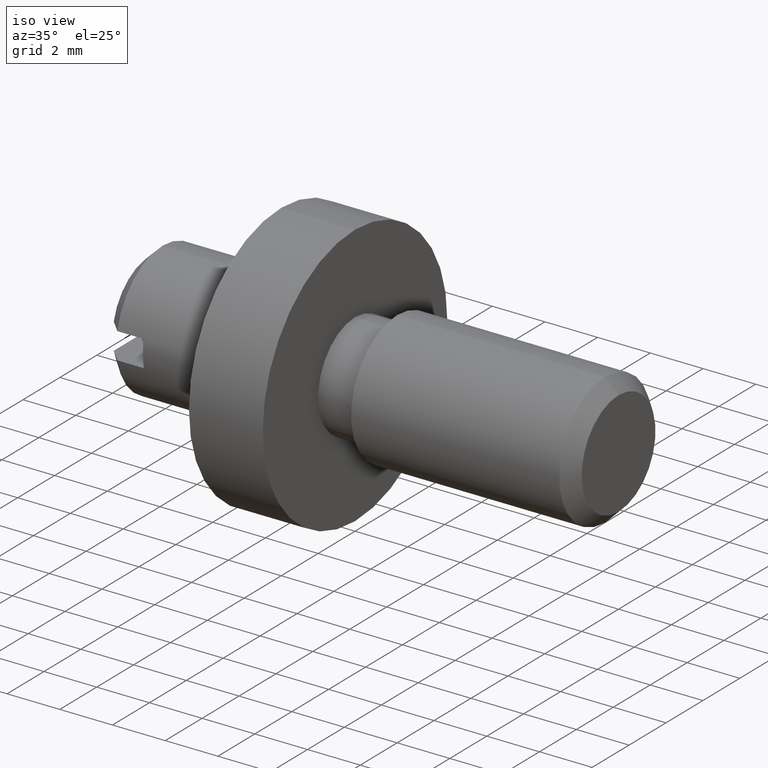
[diagram: clean part render]
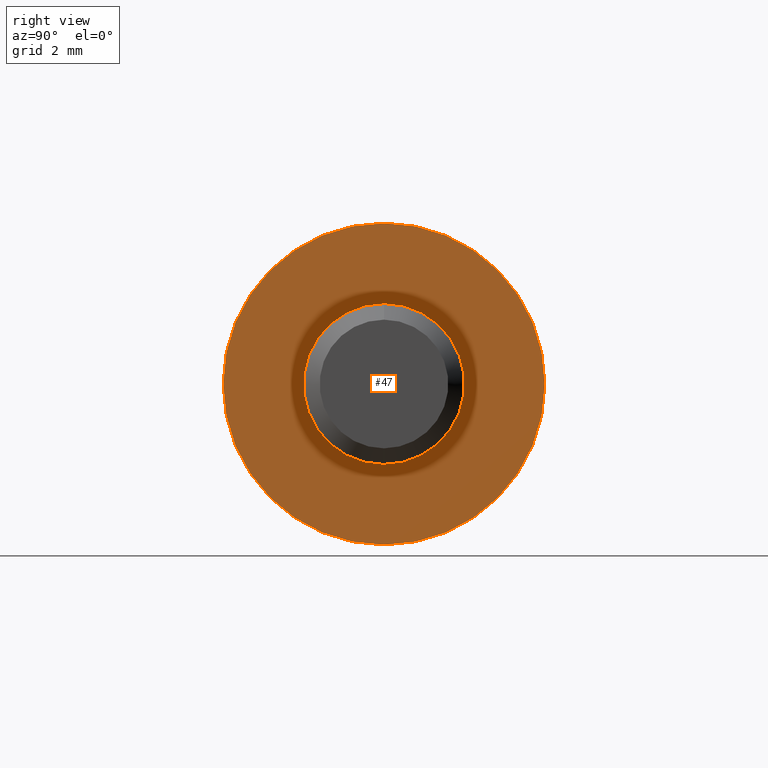
[diagram: tour spotlight — one face highlighted and labeled with its STEP entity id]
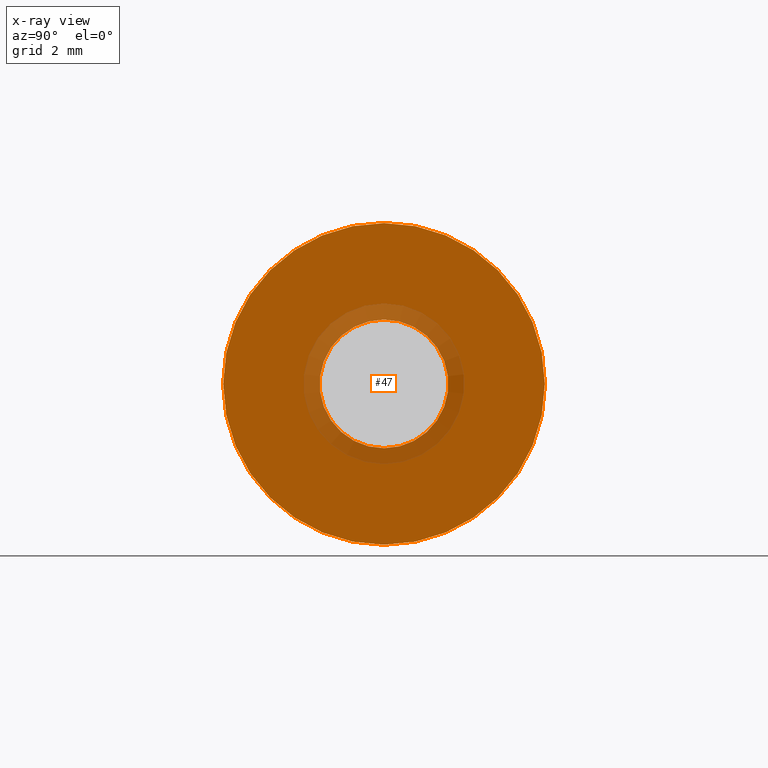
[diagram: x-ray of the same camera — body ghosted, this tour face saturated]
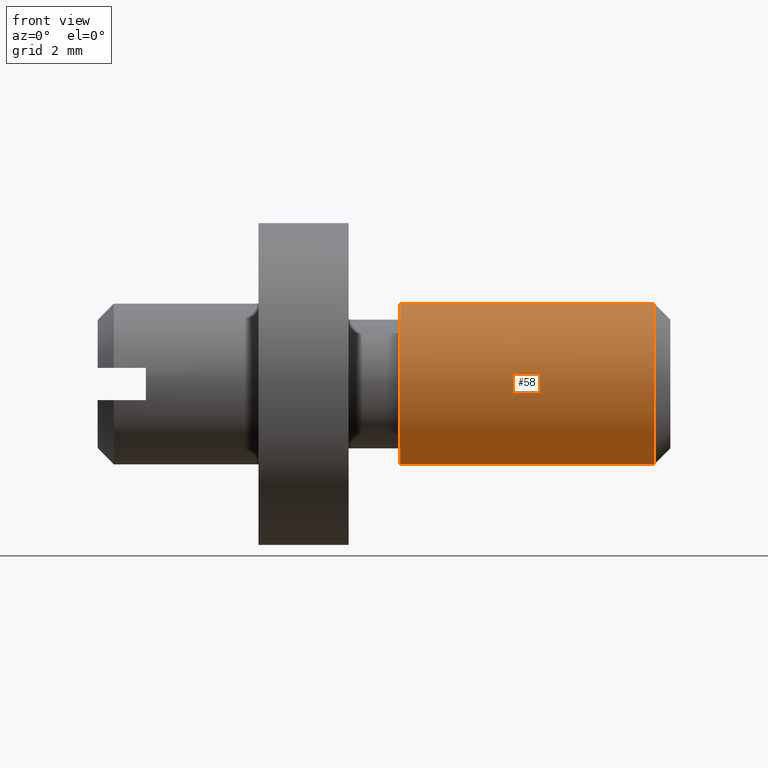
[diagram: tour spotlight — one face highlighted and labeled with its STEP entity id]
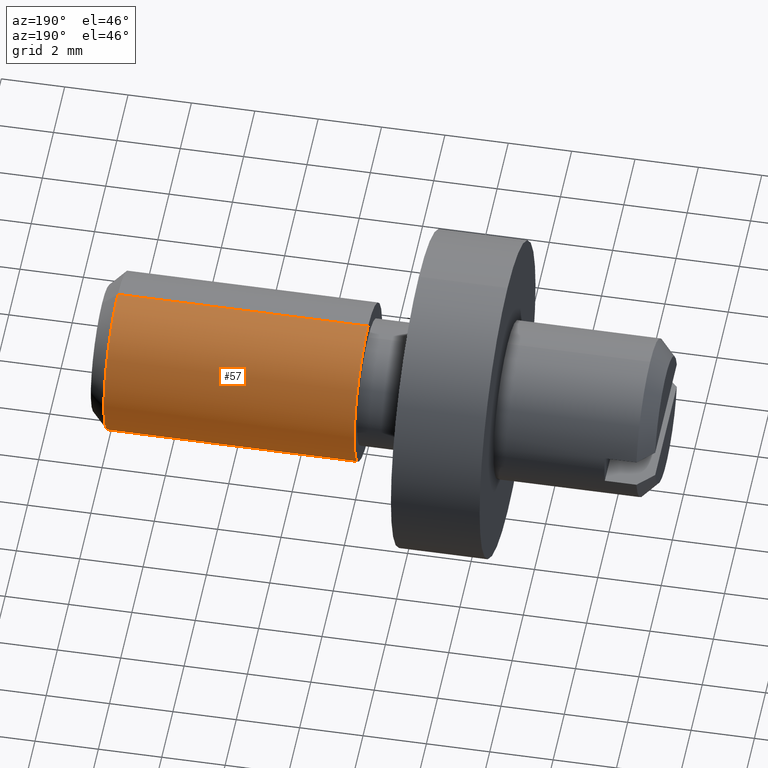
[diagram: tour spotlight — one face highlighted and labeled with its STEP entity id]
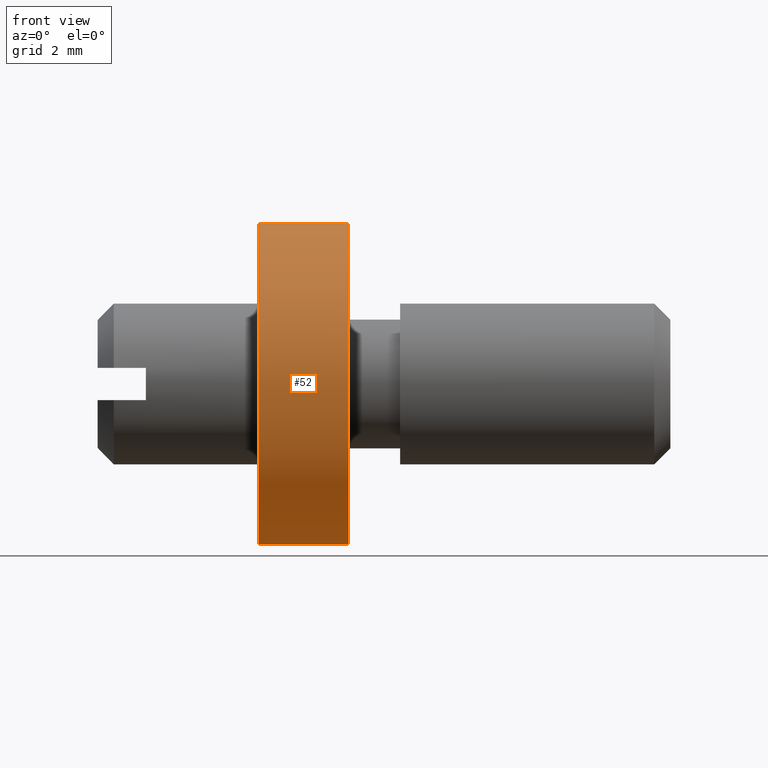
[diagram: tour spotlight — one face highlighted and labeled with its STEP entity id]
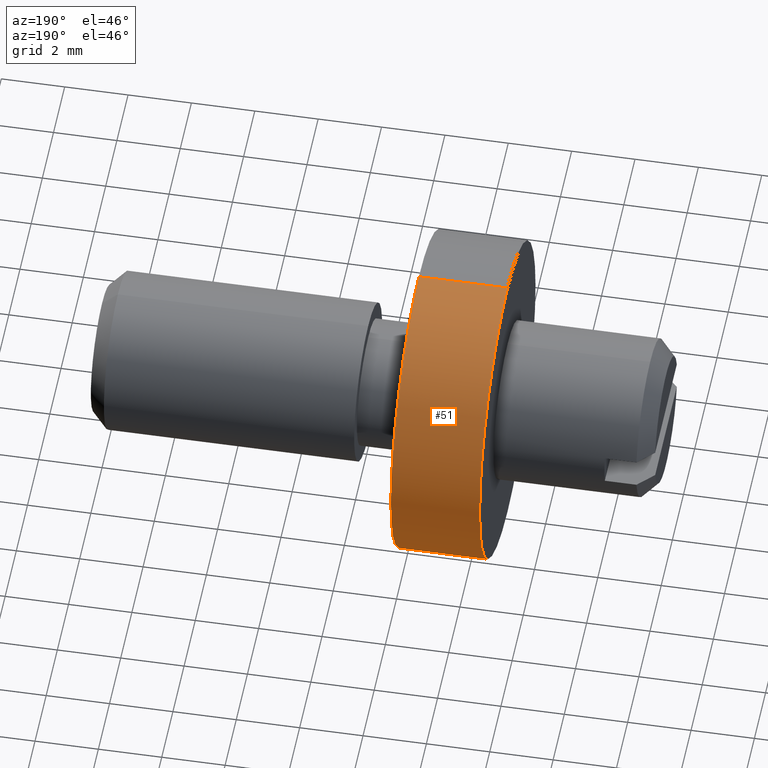
[diagram: tour spotlight — one face highlighted and labeled with its STEP entity id]
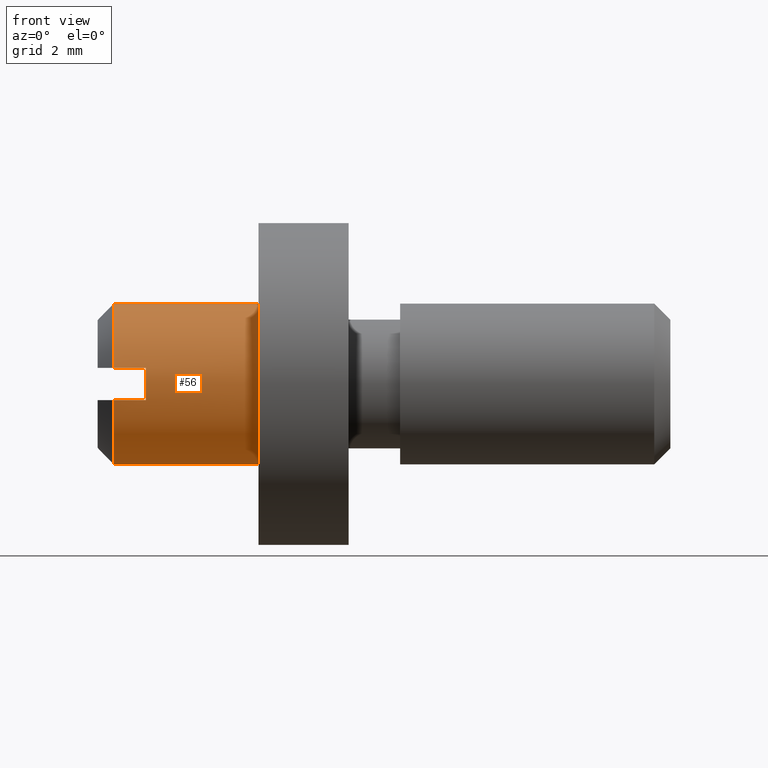
[diagram: tour spotlight — one face highlighted and labeled with its STEP entity id]
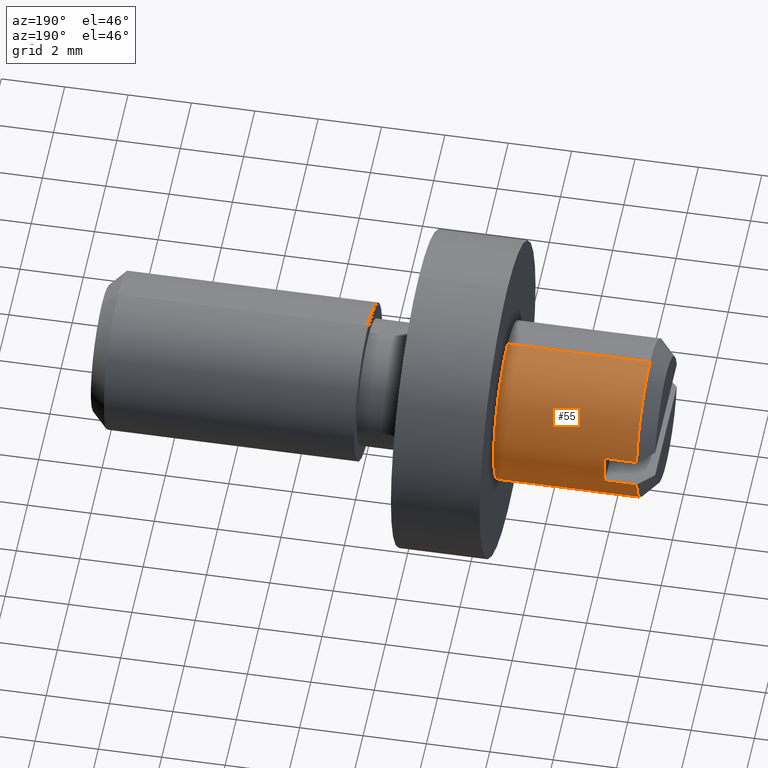
[diagram: tour spotlight — one face highlighted and labeled with its STEP entity id]
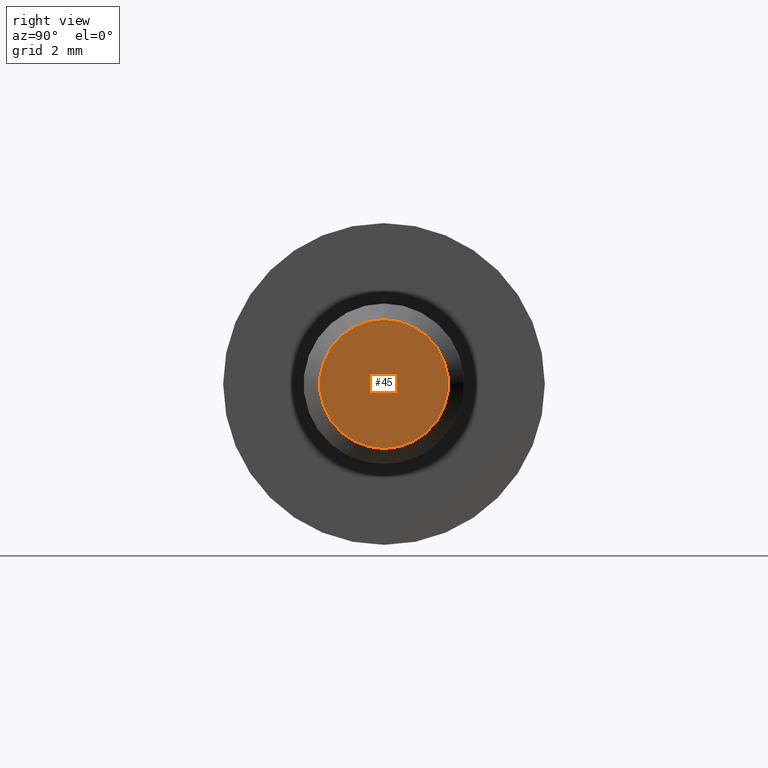
[diagram: tour spotlight — one face highlighted and labeled with its STEP entity id]
A machine part: a face-by-face anatomy tour. The part has 21 B-rep faces; the first image is the clean iso view, then the 8 largest visible faces are spotlighted one at a time (largest first), each with its STEP entity span.

Face 1 — right view, entity #47. An x-ray twin of the same camera follows (body ghosted, this face saturated) — the face is partly hidden behind the body. In plain terms, the highlighted planar face has unit normal (-1, 0, 0).
Definition (entity closure, byte-faithful):
#47=ADVANCED_FACE('',(#133,#134),#132,.F.);
#132=PLANE('',#319);
#133=FACE_OUTER_BOUND('',#320,.T.);
#134=FACE_BOUND('',#321,.T.);
#316=CARTESIAN_POINT('',(-1.00000000000E+01,-1.03923048454E+01,-1.15000000000E+01));
#317=DIRECTION('',(-1.00000000000E+00,0.00000000000E+00,0.00000000000E+00));
#318=DIRECTION('',(0.00000000000E+00,0.00000000000E+00,1.00000000000E+00));
#319=AXIS2_PLACEMENT_3D('',#316,#317,#318);
#320=EDGE_LOOP('',(#433,#434));
#321=EDGE_LOOP('',(#435,#436));
#433=ORIENTED_EDGE('',*,*,#520,.F.);
#434=ORIENTED_EDGE('',*,*,#521,.F.);
#435=ORIENTED_EDGE('',*,*,#522,.T.);
#436=ORIENTED_EDGE('',*,*,#523,.T.);
#520=EDGE_CURVE('',#695,#696,#697,.T.);
#521=EDGE_CURVE('',#696,#695,#703,.T.);
#522=EDGE_CURVE('',#709,#710,#711,.T.);
#523=EDGE_CURVE('',#710,#709,#717,.T.);
#695=VERTEX_POINT('',#949);
#696=VERTEX_POINT('',#950);
#697=CIRCLE('',#954,5.00000000000E+00);
#703=CIRCLE('',#958,5.00000000000E+00);
#709=VERTEX_POINT('',#959);
#710=VERTEX_POINT('',#960);
#711=CIRCLE('',#964,2.00000000000E+00);
#717=CIRCLE('',#968,2.00000000000E+00);
#949=CARTESIAN_POINT('',(-1.00000000000E+01,0.00000000000E+00,-5.00000000000E+00));
#950=CARTESIAN_POINT('',(-1.00000000000E+01,-9.08362650144E-16,5.00000000000E+00));
#951=CARTESIAN_POINT('',(-1.00000000000E+01,0.00000000000E+00,0.00000000000E+00));
#952=DIRECTION('',(-1.00000000000E+00,0.00000000000E+00,0.00000000000E+00));
#953=DIRECTION('',(-0.00000000000E+00,-5.92118946466E-17,1.00000000000E+00));
#954=AXIS2_PLACEMENT_3D('',#951,#952,#953);
#955=CARTESIAN_POINT('',(-1.00000000000E+01,0.00000000000E+00,0.00000000000E+00));
#956=DIRECTION('',(-1.00000000000E+00,0.00000000000E+00,0.00000000000E+00));
#957=DIRECTION('',(-0.00000000000E+00,-5.92118946466E-17,1.00000000000E+00));
#958=AXIS2_PLACEMENT_3D('',#955,#956,#957);
#959=CARTESIAN_POINT('',(-1.00000000000E+01,2.44921270764E-16,-2.00000000000E+00));
#960=CARTESIAN_POINT('',(-1.00000000000E+01,7.40148683083E-17,2.00000000000E+00));
#961=CARTESIAN_POINT('',(-1.00000000000E+01,0.00000000000E+00,0.00000000000E+00));
#962=DIRECTION('',(-1.00000000000E+00,0.00000000000E+00,0.00000000000E+00));
#963=DIRECTION('',(-0.00000000000E+00,-0.00000000000E+00,-1.00000000000E+00));
#964=AXIS2_PLACEMENT_3D('',#961,#962,#963);
#965=CARTESIAN_POINT('',(-1.00000000000E+01,0.00000000000E+00,0.00000000000E+00));
#966=DIRECTION('',(-1.00000000000E+00,0.00000000000E+00,0.00000000000E+00));
#967=DIRECTION('',(-0.00000000000E+00,-0.00000000000E+00,-1.00000000000E+00));
#968=AXIS2_PLACEMENT_3D('',#965,#966,#967);

Face 2 — front view, entity #58. In plain terms, the highlighted cylindrical surface (partial cylindrical patch) has radius 2.5 mm, axis along (-1, -0, 0).
Definition (entity closure, byte-faithful):
#58=ADVANCED_FACE('',(#245),#244,.T.);
#244=CYLINDRICAL_SURFACE('',#382,2.50000000000E+00);
#245=FACE_OUTER_BOUND('',#383,.T.);
#379=CARTESIAN_POINT('',(-4.44999980927E+00,0.00000000000E+00,0.00000000000E+00));
#380=DIRECTION('',(-1.00000000000E+00,-0.00000000000E+00,0.00000000000E+00));
#381=DIRECTION('',(0.00000000000E+00,-0.00000000000E+00,1.00000000000E+00));
#382=AXIS2_PLACEMENT_3D('',#379,#380,#381);
#383=EDGE_LOOP('',(#486,#487,#488,#489));
#486=ORIENTED_EDGE('',*,*,#541,.T.);
#487=ORIENTED_EDGE('',*,*,#538,.T.);
#488=ORIENTED_EDGE('',*,*,#516,.F.);
#489=ORIENTED_EDGE('',*,*,#540,.F.);
#516=EDGE_CURVE('',#667,#668,#669,.T.);
#538=EDGE_CURVE('',#812,#668,#813,.T.);
#540=EDGE_CURVE('',#819,#667,#826,.T.);
#541=EDGE_CURVE('',#819,#812,#832,.T.);
#667=VERTEX_POINT('',#929);
#668=VERTEX_POINT('',#930);
#669=CIRCLE('',#934,2.50000000000E+00);
#812=VERTEX_POINT('',#1018);
#813=(BOUNDED_CURVE() B_SPLINE_CURVE(1,(#1019,#1020),.UNSPECIFIED.,.F.,.F.) B_SPLINE_CURVE_WITH_KNOTS((2,2),(8.33333366442E-02,9.16666667899E-01),.UNSPECIFIED.) CURVE() GEOMETRIC_REPRESENTATION_ITEM() RATIONAL_B_SPLINE_CURVE((1.00000000000E+00,1.00000000000E+00)) REPRESENTATION_ITEM('') );
#819=VERTEX_POINT('',#1021);
#826=(BOUNDED_CURVE() B_SPLINE_CURVE(1,(#1026,#1027),.UNSPECIFIED.,.F.,.F.) B_SPLINE_CURVE_WITH_KNOTS((2,2),(8.33333333333E-02,9.16666666667E-01),.UNSPECIFIED.) CURVE() GEOMETRIC_REPRESENTATION_ITEM() RATIONAL_B_SPLINE_CURVE((7.50000000000E-01,7.50000000000E-01)) REPRESENTATION_ITEM('') );
#832=CIRCLE('',#1031,2.50000000000E+00);
#929=CARTESIAN_POINT('',(-8.40000000000E+00,3.06151588456E-16,-2.50000000000E+00));
#930=CARTESIAN_POINT('',(-8.40000000000E+00,1.48029736617E-16,2.50000000000E+00));
#931=CARTESIAN_POINT('',(-8.40000000000E+00,0.00000000000E+00,0.00000000000E+00));
#932=DIRECTION('',(-1.00000000000E+00,0.00000000000E+00,0.00000000000E+00));
#933=DIRECTION('',(-0.00000000000E+00,-0.00000000000E+00,-1.00000000000E+00));
#934=AXIS2_PLACEMENT_3D('',#931,#932,#933);
#1018=CARTESIAN_POINT('',(-5.00000000000E-01,1.48029736617E-16,2.50000000000E+00));
#1019=CARTESIAN_POINT('',(-5.00000031387E-01,0.00000000000E+00,2.50000000000E+00));
#1020=CARTESIAN_POINT('',(-8.40000001169E+00,0.00000000000E+00,2.50000000000E+00));
#1021=CARTESIAN_POINT('',(-5.00000000000E-01,3.06151588456E-16,-2.50000000000E+00));
#1026=CARTESIAN_POINT('',(-5.00000000000E-01,-1.48029736617E-16,-2.50000000000E+00));
#1027=CARTESIAN_POINT('',(-8.40000000000E+00,-1.48029736617E-16,-2.50000000000E+00));
#1028=CARTESIAN_POINT('',(-5.00000000000E-01,0.00000000000E+00,0.00000000000E+00));
#1029=DIRECTION('',(-1.00000000000E+00,0.00000000000E+00,0.00000000000E+00));
#1030=DIRECTION('',(-0.00000000000E+00,-0.00000000000E+00,-1.00000000000E+00));
#1031=AXIS2_PLACEMENT_3D('',#1028,#1029,#1030);

Face 3 — auxiliary view, entity #57. In plain terms, the highlighted cylindrical surface (partial cylindrical patch) has radius 2.5 mm, axis along (-1, -0, 0).
Definition (entity closure, byte-faithful):
#57=ADVANCED_FACE('',(#235),#234,.T.);
#234=CYLINDRICAL_SURFACE('',#377,2.50000000000E+00);
#235=FACE_OUTER_BOUND('',#378,.T.);
#374=CARTESIAN_POINT('',(-4.44999980927E+00,0.00000000000E+00,0.00000000000E+00));
#375=DIRECTION('',(-1.00000000000E+00,-0.00000000000E+00,0.00000000000E+00));
#376=DIRECTION('',(0.00000000000E+00,-0.00000000000E+00,1.00000000000E+00));
#377=AXIS2_PLACEMENT_3D('',#374,#375,#376);
#378=EDGE_LOOP('',(#482,#483,#484,#485));
#482=ORIENTED_EDGE('',*,*,#517,.F.);
#483=ORIENTED_EDGE('',*,*,#538,.F.);
#484=ORIENTED_EDGE('',*,*,#539,.T.);
#485=ORIENTED_EDGE('',*,*,#540,.T.);
#517=EDGE_CURVE('',#668,#667,#675,.T.);
#538=EDGE_CURVE('',#812,#668,#813,.T.);
#539=EDGE_CURVE('',#812,#819,#820,.T.);
#540=EDGE_CURVE('',#819,#667,#826,.T.);
#667=VERTEX_POINT('',#929);
#668=VERTEX_POINT('',#930);
#675=CIRCLE('',#938,2.50000000000E+00);
#812=VERTEX_POINT('',#1018);
#813=(BOUNDED_CURVE() B_SPLINE_CURVE(1,(#1019,#1020),.UNSPECIFIED.,.F.,.F.) B_SPLINE_CURVE_WITH_KNOTS((2,2),(8.33333366442E-02,9.16666667899E-01),.UNSPECIFIED.) CURVE() GEOMETRIC_REPRESENTATION_ITEM() RATIONAL_B_SPLINE_CURVE((1.00000000000E+00,1.00000000000E+00)) REPRESENTATION_ITEM('') );
#819=VERTEX_POINT('',#1021);
#820=CIRCLE('',#1025,2.50000000000E+00);
#826=(BOUNDED_CURVE() B_SPLINE_CURVE(1,(#1026,#1027),.UNSPECIFIED.,.F.,.F.) B_SPLINE_CURVE_WITH_KNOTS((2,2),(8.33333333333E-02,9.16666666667E-01),.UNSPECIFIED.) CURVE() GEOMETRIC_REPRESENTATION_ITEM() RATIONAL_B_SPLINE_CURVE((7.50000000000E-01,7.50000000000E-01)) REPRESENTATION_ITEM('') );
#929=CARTESIAN_POINT('',(-8.40000000000E+00,3.06151588456E-16,-2.50000000000E+00));
#930=CARTESIAN_POINT('',(-8.40000000000E+00,1.48029736617E-16,2.50000000000E+00));
#935=CARTESIAN_POINT('',(-8.40000000000E+00,0.00000000000E+00,0.00000000000E+00));
#936=DIRECTION('',(-1.00000000000E+00,0.00000000000E+00,0.00000000000E+00));
#937=DIRECTION('',(-0.00000000000E+00,-0.00000000000E+00,-1.00000000000E+00));
#938=AXIS2_PLACEMENT_3D('',#935,#936,#937);
#1018=CARTESIAN_POINT('',(-5.00000000000E-01,1.48029736617E-16,2.50000000000E+00));
#1019=CARTESIAN_POINT('',(-5.00000031387E-01,0.00000000000E+00,2.50000000000E+00));
#1020=CARTESIAN_POINT('',(-8.40000001169E+00,0.00000000000E+00,2.50000000000E+00));
#1021=CARTESIAN_POINT('',(-5.00000000000E-01,3.06151588456E-16,-2.50000000000E+00));
#1022=CARTESIAN_POINT('',(-5.00000000000E-01,0.00000000000E+00,0.00000000000E+00));
#1023=DIRECTION('',(-1.00000000000E+00,0.00000000000E+00,0.00000000000E+00));
#1024=DIRECTION('',(-0.00000000000E+00,-0.00000000000E+00,-1.00000000000E+00));
#1025=AXIS2_PLACEMENT_3D('',#1022,#1023,#1024);
#1026=CARTESIAN_POINT('',(-5.00000000000E-01,-1.48029736617E-16,-2.50000000000E+00));
#1027=CARTESIAN_POINT('',(-8.40000000000E+00,-1.48029736617E-16,-2.50000000000E+00));

Face 4 — front view, entity #52. In plain terms, the highlighted cylindrical surface (partial cylindrical patch) has radius 5 mm, axis along (-1, -0, 0).
Definition (entity closure, byte-faithful):
#52=ADVANCED_FACE('',(#185),#184,.T.);
#184=CYLINDRICAL_SURFACE('',#352,5.00000000000E+00);
#185=FACE_OUTER_BOUND('',#353,.T.);
#349=CARTESIAN_POINT('',(-1.14000000954E+01,0.00000000000E+00,0.00000000000E+00));
#350=DIRECTION('',(-1.00000000000E+00,-0.00000000000E+00,0.00000000000E+00));
#351=DIRECTION('',(0.00000000000E+00,-0.00000000000E+00,1.00000000000E+00));
#352=AXIS2_PLACEMENT_3D('',#349,#350,#351);
#353=EDGE_LOOP('',(#454,#455,#456,#457));
#454=ORIENTED_EDGE('',*,*,#520,.T.);
#455=ORIENTED_EDGE('',*,*,#532,.T.);
#456=ORIENTED_EDGE('',*,*,#524,.F.);
#457=ORIENTED_EDGE('',*,*,#533,.F.);
#520=EDGE_CURVE('',#695,#696,#697,.T.);
#524=EDGE_CURVE('',#723,#724,#725,.T.);
#532=EDGE_CURVE('',#696,#724,#776,.T.);
#533=EDGE_CURVE('',#695,#723,#782,.T.);
#695=VERTEX_POINT('',#949);
#696=VERTEX_POINT('',#950);
#697=CIRCLE('',#954,5.00000000000E+00);
#723=VERTEX_POINT('',#969);
#724=VERTEX_POINT('',#970);
#725=CIRCLE('',#974,5.00000000000E+00);
#776=(BOUNDED_CURVE() B_SPLINE_CURVE(1,(#1006,#1007),.UNSPECIFIED.,.F.,.F.) B_SPLINE_CURVE_WITH_KNOTS((2,2),(8.33333233997E-02,9.16666663280E-01),.UNSPECIFIED.) CURVE() GEOMETRIC_REPRESENTATION_ITEM() RATIONAL_B_SPLINE_CURVE((1.00000000000E+00,1.00000000000E+00)) REPRESENTATION_ITEM('') );
#782=(BOUNDED_CURVE() B_SPLINE_CURVE(1,(#1008,#1009),.UNSPECIFIED.,.F.,.F.) B_SPLINE_CURVE_WITH_KNOTS((2,2),(8.33333333333E-02,9.16666666667E-01),.UNSPECIFIED.) CURVE() GEOMETRIC_REPRESENTATION_ITEM() RATIONAL_B_SPLINE_CURVE((7.50000000000E-01,7.50000000000E-01)) REPRESENTATION_ITEM('') );
#949=CARTESIAN_POINT('',(-1.00000000000E+01,0.00000000000E+00,-5.00000000000E+00));
#950=CARTESIAN_POINT('',(-1.00000000000E+01,-9.08362650144E-16,5.00000000000E+00));
#951=CARTESIAN_POINT('',(-1.00000000000E+01,0.00000000000E+00,0.00000000000E+00));
#952=DIRECTION('',(-1.00000000000E+00,0.00000000000E+00,0.00000000000E+00));
#953=DIRECTION('',(-0.00000000000E+00,-5.92118946466E-17,1.00000000000E+00));
#954=AXIS2_PLACEMENT_3D('',#951,#952,#953);
#969=CARTESIAN_POINT('',(-1.28000000000E+01,6.12303176911E-16,-5.00000000000E+00));
#970=CARTESIAN_POINT('',(-1.28000000000E+01,2.96059473233E-16,5.00000000000E+00));
#971=CARTESIAN_POINT('',(-1.28000000000E+01,0.00000000000E+00,0.00000000000E+00));
#972=DIRECTION('',(-1.00000000000E+00,0.00000000000E+00,0.00000000000E+00));
#973=DIRECTION('',(-0.00000000000E+00,-0.00000000000E+00,-1.00000000000E+00));
#974=AXIS2_PLACEMENT_3D('',#971,#972,#973);
#1006=CARTESIAN_POINT('',(-9.99999996662E+00,0.00000000000E+00,5.00000000000E+00));
#1007=CARTESIAN_POINT('',(-1.27999999886E+01,0.00000000000E+00,5.00000000000E+00));
#1008=CARTESIAN_POINT('',(-1.00000000000E+01,-2.96059473233E-16,-5.00000000000E+00));
#1009=CARTESIAN_POINT('',(-1.28000000000E+01,-2.96059473233E-16,-5.00000000000E+00));

Face 5 — auxiliary view, entity #51. In plain terms, the highlighted cylindrical surface (partial cylindrical patch) has radius 5 mm, axis along (-1, -0, 0).
Definition (entity closure, byte-faithful):
#51=ADVANCED_FACE('',(#175),#174,.T.);
#174=CYLINDRICAL_SURFACE('',#347,5.00000000000E+00);
#175=FACE_OUTER_BOUND('',#348,.T.);
#344=CARTESIAN_POINT('',(-1.14000000954E+01,0.00000000000E+00,0.00000000000E+00));
#345=DIRECTION('',(-1.00000000000E+00,-0.00000000000E+00,0.00000000000E+00));
#346=DIRECTION('',(0.00000000000E+00,-0.00000000000E+00,1.00000000000E+00));
#347=AXIS2_PLACEMENT_3D('',#344,#345,#346);
#348=EDGE_LOOP('',(#450,#451,#452,#453));
#450=ORIENTED_EDGE('',*,*,#525,.F.);
#451=ORIENTED_EDGE('',*,*,#532,.F.);
#452=ORIENTED_EDGE('',*,*,#521,.T.);
#453=ORIENTED_EDGE('',*,*,#533,.T.);
#521=EDGE_CURVE('',#696,#695,#703,.T.);
#525=EDGE_CURVE('',#724,#723,#731,.T.);
#532=EDGE_CURVE('',#696,#724,#776,.T.);
#533=EDGE_CURVE('',#695,#723,#782,.T.);
#695=VERTEX_POINT('',#949);
#696=VERTEX_POINT('',#950);
#703=CIRCLE('',#958,5.00000000000E+00);
#723=VERTEX_POINT('',#969);
#724=VERTEX_POINT('',#970);
#731=CIRCLE('',#978,5.00000000000E+00);
#776=(BOUNDED_CURVE() B_SPLINE_CURVE(1,(#1006,#1007),.UNSPECIFIED.,.F.,.F.) B_SPLINE_CURVE_WITH_KNOTS((2,2),(8.33333233997E-02,9.16666663280E-01),.UNSPECIFIED.) CURVE() GEOMETRIC_REPRESENTATION_ITEM() RATIONAL_B_SPLINE_CURVE((1.00000000000E+00,1.00000000000E+00)) REPRESENTATION_ITEM('') );
#782=(BOUNDED_CURVE() B_SPLINE_CURVE(1,(#1008,#1009),.UNSPECIFIED.,.F.,.F.) B_SPLINE_CURVE_WITH_KNOTS((2,2),(8.33333333333E-02,9.16666666667E-01),.UNSPECIFIED.) CURVE() GEOMETRIC_REPRESENTATION_ITEM() RATIONAL_B_SPLINE_CURVE((7.50000000000E-01,7.50000000000E-01)) REPRESENTATION_ITEM('') );
#949=CARTESIAN_POINT('',(-1.00000000000E+01,0.00000000000E+00,-5.00000000000E+00));
#950=CARTESIAN_POINT('',(-1.00000000000E+01,-9.08362650144E-16,5.00000000000E+00));
#955=CARTESIAN_POINT('',(-1.00000000000E+01,0.00000000000E+00,0.00000000000E+00));
#956=DIRECTION('',(-1.00000000000E+00,0.00000000000E+00,0.00000000000E+00));
#957=DIRECTION('',(-0.00000000000E+00,-5.92118946466E-17,1.00000000000E+00));
#958=AXIS2_PLACEMENT_3D('',#955,#956,#957);
#969=CARTESIAN_POINT('',(-1.28000000000E+01,6.12303176911E-16,-5.00000000000E+00));
#970=CARTESIAN_POINT('',(-1.28000000000E+01,2.96059473233E-16,5.00000000000E+00));
#975=CARTESIAN_POINT('',(-1.28000000000E+01,0.00000000000E+00,0.00000000000E+00));
#976=DIRECTION('',(-1.00000000000E+00,0.00000000000E+00,0.00000000000E+00));
#977=DIRECTION('',(-0.00000000000E+00,-0.00000000000E+00,-1.00000000000E+00));
#978=AXIS2_PLACEMENT_3D('',#975,#976,#977);
#1006=CARTESIAN_POINT('',(-9.99999996662E+00,0.00000000000E+00,5.00000000000E+00));
#1007=CARTESIAN_POINT('',(-1.27999999886E+01,0.00000000000E+00,5.00000000000E+00));
#1008=CARTESIAN_POINT('',(-1.00000000000E+01,-2.96059473233E-16,-5.00000000000E+00));
#1009=CARTESIAN_POINT('',(-1.28000000000E+01,-2.96059473233E-16,-5.00000000000E+00));

Face 6 — front view, entity #56. In plain terms, the highlighted cylindrical surface (partial cylindrical patch) has radius 2.5 mm, axis along (-1, 0, -0).
Definition (entity closure, byte-faithful):
#56=ADVANCED_FACE('',(#225),#224,.T.);
#224=CYLINDRICAL_SURFACE('',#372,2.50000000001E+00);
#225=FACE_OUTER_BOUND('',#373,.T.);
#369=CARTESIAN_POINT('',(-1.50499997139E+01,0.00000000000E+00,0.00000000000E+00));
#370=DIRECTION('',(-1.00000000000E+00,0.00000000000E+00,-0.00000000000E+00));
#371=DIRECTION('',(-0.00000000000E+00,-0.00000000000E+00,1.00000000000E+00));
#372=AXIS2_PLACEMENT_3D('',#369,#370,#371);
#373=EDGE_LOOP('',(#474,#475,#476,#477,#478,#479,#480,#481));
#474=ORIENTED_EDGE('',*,*,#526,.T.);
#475=ORIENTED_EDGE('',*,*,#536,.T.);
#476=ORIENTED_EDGE('',*,*,#530,.F.);
#477=ORIENTED_EDGE('',*,*,#509,.F.);
#478=ORIENTED_EDGE('',*,*,#529,.T.);
#479=ORIENTED_EDGE('',*,*,#501,.T.);
#480=ORIENTED_EDGE('',*,*,#512,.F.);
#481=ORIENTED_EDGE('',*,*,#537,.F.);
#501=EDGE_CURVE('',#566,#559,#567,.T.);
#509=EDGE_CURVE('',#615,#586,#622,.T.);
#512=EDGE_CURVE('',#634,#559,#641,.T.);
#526=EDGE_CURVE('',#737,#738,#739,.T.);
#529=EDGE_CURVE('',#615,#566,#757,.T.);
#530=EDGE_CURVE('',#586,#763,#764,.T.);
#536=EDGE_CURVE('',#738,#763,#800,.T.);
#537=EDGE_CURVE('',#737,#634,#806,.T.);
#559=VERTEX_POINT('',#860);
#566=VERTEX_POINT('',#865);
#567=LINE('',#866,#867);
#586=VERTEX_POINT('',#876);
#615=VERTEX_POINT('',#895);
#622=LINE('',#899,#900);
#634=VERTEX_POINT('',#906);
#641=CIRCLE('',#914,2.50000000001E+00);
#737=VERTEX_POINT('',#979);
#738=VERTEX_POINT('',#980);
#739=CIRCLE('',#984,2.50000000001E+00);
#757=CIRCLE('',#996,2.50000000000E+00);
#763=VERTEX_POINT('',#997);
#764=CIRCLE('',#1001,2.50000000001E+00);
#800=(BOUNDED_CURVE() B_SPLINE_CURVE(1,(#1014,#1015),.UNSPECIFIED.,.F.,.F.) B_SPLINE_CURVE_WITH_KNOTS((2,2),(8.33333313467E-02,9.16666670832E-01),.UNSPECIFIED.) CURVE() GEOMETRIC_REPRESENTATION_ITEM() RATIONAL_B_SPLINE_CURVE((1.00000000000E+00,1.00000000000E+00)) REPRESENTATION_ITEM('') );
#806=(BOUNDED_CURVE() B_SPLINE_CURVE(1,(#1016,#1017),.UNSPECIFIED.,.F.,.F.) B_SPLINE_CURVE_WITH_KNOTS((2,2),(8.33333333333E-02,9.16666666667E-01),.UNSPECIFIED.) CURVE() GEOMETRIC_REPRESENTATION_ITEM() RATIONAL_B_SPLINE_CURVE((7.50000000000E-01,7.50000000000E-01)) REPRESENTATION_ITEM('') );
#860=CARTESIAN_POINT('',(-1.73000000000E+01,-2.44948974278E+00,-5.00000000000E-01));
#865=CARTESIAN_POINT('',(-1.63000000000E+01,-2.44948974278E+00,-5.00000000000E-01));
#866=CARTESIAN_POINT('',(-1.63000000000E+01,-2.44948974278E+00,-5.00000000000E-01));
#867=VECTOR('',#868,1.00000000000E+00);
#868=DIRECTION('',(-1.00000000000E+00,0.00000000000E+00,0.00000000000E+00));
#876=CARTESIAN_POINT('',(-1.73000000000E+01,-2.44948974278E+00,5.00000000000E-01));
#895=CARTESIAN_POINT('',(-1.63000000000E+01,-2.44948974278E+00,5.00000000000E-01));
#899=CARTESIAN_POINT('',(-1.63000000000E+01,-2.44948974278E+00,5.00000000000E-01));
#900=VECTOR('',#901,1.00000000000E+00);
#901=DIRECTION('',(-1.00000000000E+00,0.00000000000E+00,0.00000000000E+00));
#906=CARTESIAN_POINT('',(-1.73000000000E+01,5.93869357868E-07,-2.50000000001E+00));
#911=CARTESIAN_POINT('',(-1.73000000000E+01,0.00000000000E+00,0.00000000000E+00));
#912=DIRECTION('',(-1.00000000000E+00,0.00000000000E+00,0.00000000000E+00));
#913=DIRECTION('',(-0.00000000000E+00,-9.79795897113E-01,2.00000000000E-01));
#914=AXIS2_PLACEMENT_3D('',#911,#912,#913);
#979=CARTESIAN_POINT('',(-1.28000000000E+01,0.00000000000E+00,-2.50000000001E+00));
#980=CARTESIAN_POINT('',(-1.28000000000E+01,-4.54181325074E-16,2.50000000001E+00));
#981=CARTESIAN_POINT('',(-1.28000000000E+01,0.00000000000E+00,0.00000000000E+00));
#982=DIRECTION('',(-1.00000000000E+00,0.00000000000E+00,0.00000000000E+00));
#983=DIRECTION('',(-0.00000000000E+00,-5.92118946466E-17,1.00000000000E+00));
#984=AXIS2_PLACEMENT_3D('',#981,#982,#983);
#993=CARTESIAN_POINT('',(-1.63000000000E+01,0.00000000000E+00,0.00000000000E+00));
#994=DIRECTION('',(1.00000000000E+00,0.00000000000E+00,0.00000000000E+00));
#995=DIRECTION('',(-0.00000000000E+00,9.79795897113E-01,-2.00000000000E-01));
#996=AXIS2_PLACEMENT_3D('',#993,#994,#995);
#997=CARTESIAN_POINT('',(-1.73000000000E+01,5.56557831332E-11,2.50000000001E+00));
#998=CARTESIAN_POINT('',(-1.73000000000E+01,0.00000000000E+00,0.00000000000E+00));
#999=DIRECTION('',(-1.00000000000E+00,0.00000000000E+00,0.00000000000E+00));
#1000=DIRECTION('',(-0.00000000000E+00,9.79795897113E-01,-2.00000000000E-01));
#1001=AXIS2_PLACEMENT_3D('',#998,#999,#1000);
#1014=CARTESIAN_POINT('',(-1.27999999893E+01,0.00000000000E+00,2.50000000001E+00));
#1015=CARTESIAN_POINT('',(-1.73000000225E+01,0.00000000000E+00,2.50000000001E+00));
#1016=CARTESIAN_POINT('',(-1.28000000000E+01,-1.48029736617E-16,-2.50000000001E+00));
#1017=CARTESIAN_POINT('',(-1.73000000000E+01,-1.48029736617E-16,-2.50000000001E+00));

Face 7 — auxiliary view, entity #55. In plain terms, the highlighted cylindrical surface (partial cylindrical patch) has radius 2.5 mm, axis along (-1, 0, -0).
Definition (entity closure, byte-faithful):
#55=ADVANCED_FACE('',(#215),#214,.T.);
#214=CYLINDRICAL_SURFACE('',#367,2.50000000001E+00);
#215=FACE_OUTER_BOUND('',#368,.T.);
#364=CARTESIAN_POINT('',(-1.50499997139E+01,0.00000000000E+00,0.00000000000E+00));
#365=DIRECTION('',(-1.00000000000E+00,0.00000000000E+00,-0.00000000000E+00));
#366=DIRECTION('',(-0.00000000000E+00,-0.00000000000E+00,1.00000000000E+00));
#367=AXIS2_PLACEMENT_3D('',#364,#365,#366);
#368=EDGE_LOOP('',(#466,#467,#468,#469,#470,#471,#472,#473));
#466=ORIENTED_EDGE('',*,*,#511,.F.);
#467=ORIENTED_EDGE('',*,*,#503,.F.);
#468=ORIENTED_EDGE('',*,*,#528,.T.);
#469=ORIENTED_EDGE('',*,*,#507,.T.);
#470=ORIENTED_EDGE('',*,*,#531,.F.);
#471=ORIENTED_EDGE('',*,*,#536,.F.);
#472=ORIENTED_EDGE('',*,*,#527,.T.);
#473=ORIENTED_EDGE('',*,*,#537,.T.);
#503=EDGE_CURVE('',#573,#544,#580,.T.);
#507=EDGE_CURVE('',#608,#601,#609,.T.);
#511=EDGE_CURVE('',#544,#634,#635,.T.);
#527=EDGE_CURVE('',#738,#737,#745,.T.);
#528=EDGE_CURVE('',#573,#608,#751,.T.);
#531=EDGE_CURVE('',#763,#601,#770,.T.);
#536=EDGE_CURVE('',#738,#763,#800,.T.);
#537=EDGE_CURVE('',#737,#634,#806,.T.);
#544=VERTEX_POINT('',#850);
#573=VERTEX_POINT('',#869);
#580=LINE('',#873,#874);
#601=VERTEX_POINT('',#886);
#608=VERTEX_POINT('',#891);
#609=LINE('',#892,#893);
#634=VERTEX_POINT('',#906);
#635=CIRCLE('',#910,2.50000000001E+00);
#737=VERTEX_POINT('',#979);
#738=VERTEX_POINT('',#980);
#745=CIRCLE('',#988,2.50000000001E+00);
#751=CIRCLE('',#992,2.50000000000E+00);
#763=VERTEX_POINT('',#997);
#770=CIRCLE('',#1005,2.50000000001E+00);
#800=(BOUNDED_CURVE() B_SPLINE_CURVE(1,(#1014,#1015),.UNSPECIFIED.,.F.,.F.) B_SPLINE_CURVE_WITH_KNOTS((2,2),(8.33333313467E-02,9.16666670832E-01),.UNSPECIFIED.) CURVE() GEOMETRIC_REPRESENTATION_ITEM() RATIONAL_B_SPLINE_CURVE((1.00000000000E+00,1.00000000000E+00)) REPRESENTATION_ITEM('') );
#806=(BOUNDED_CURVE() B_SPLINE_CURVE(1,(#1016,#1017),.UNSPECIFIED.,.F.,.F.) B_SPLINE_CURVE_WITH_KNOTS((2,2),(8.33333333333E-02,9.16666666667E-01),.UNSPECIFIED.) CURVE() GEOMETRIC_REPRESENTATION_ITEM() RATIONAL_B_SPLINE_CURVE((7.50000000000E-01,7.50000000000E-01)) REPRESENTATION_ITEM('') );
#850=CARTESIAN_POINT('',(-1.73000000000E+01,2.44948974278E+00,-5.00000000000E-01));
#869=CARTESIAN_POINT('',(-1.63000000000E+01,2.44948974278E+00,-5.00000000000E-01));
#873=CARTESIAN_POINT('',(-1.63000000000E+01,2.44948974278E+00,-5.00000000000E-01));
#874=VECTOR('',#875,1.00000000000E+00);
#875=DIRECTION('',(-1.00000000000E+00,0.00000000000E+00,0.00000000000E+00));
#886=CARTESIAN_POINT('',(-1.73000000000E+01,2.44948974278E+00,5.00000000000E-01));
#891=CARTESIAN_POINT('',(-1.63000000000E+01,2.44948974279E+00,5.00000000000E-01));
#892=CARTESIAN_POINT('',(-1.63000000000E+01,2.44948974279E+00,5.00000000000E-01));
#893=VECTOR('',#894,1.00000000000E+00);
#894=DIRECTION('',(-1.00000000000E+00,-1.00000008274E-11,0.00000000000E+00));
#906=CARTESIAN_POINT('',(-1.73000000000E+01,5.93869357868E-07,-2.50000000001E+00));
#907=CARTESIAN_POINT('',(-1.73000000000E+01,0.00000000000E+00,0.00000000000E+00));
#908=DIRECTION('',(-1.00000000000E+00,0.00000000000E+00,0.00000000000E+00));
#909=DIRECTION('',(-0.00000000000E+00,-9.79795897113E-01,2.00000000000E-01));
#910=AXIS2_PLACEMENT_3D('',#907,#908,#909);
#979=CARTESIAN_POINT('',(-1.28000000000E+01,0.00000000000E+00,-2.50000000001E+00));
#980=CARTESIAN_POINT('',(-1.28000000000E+01,-4.54181325074E-16,2.50000000001E+00));
#985=CARTESIAN_POINT('',(-1.28000000000E+01,0.00000000000E+00,0.00000000000E+00));
#986=DIRECTION('',(-1.00000000000E+00,0.00000000000E+00,0.00000000000E+00));
#987=DIRECTION('',(-0.00000000000E+00,-5.92118946466E-17,1.00000000000E+00));
#988=AXIS2_PLACEMENT_3D('',#985,#986,#987);
#989=CARTESIAN_POINT('',(-1.63000000000E+01,0.00000000000E+00,0.00000000000E+00));
#990=DIRECTION('',(1.00000000000E+00,0.00000000000E+00,0.00000000000E+00));
#991=DIRECTION('',(-0.00000000000E+00,-9.79795897113E-01,2.00000000000E-01));
#992=AXIS2_PLACEMENT_3D('',#989,#990,#991);
#997=CARTESIAN_POINT('',(-1.73000000000E+01,5.56557831332E-11,2.50000000001E+00));
#1002=CARTESIAN_POINT('',(-1.73000000000E+01,0.00000000000E+00,0.00000000000E+00));
#1003=DIRECTION('',(-1.00000000000E+00,0.00000000000E+00,0.00000000000E+00));
#1004=DIRECTION('',(-0.00000000000E+00,9.79795897113E-01,-2.00000000000E-01));
#1005=AXIS2_PLACEMENT_3D('',#1002,#1003,#1004);
#1014=CARTESIAN_POINT('',(-1.27999999893E+01,0.00000000000E+00,2.50000000001E+00));
#1015=CARTESIAN_POINT('',(-1.73000000225E+01,0.00000000000E+00,2.50000000001E+00));
#1016=CARTESIAN_POINT('',(-1.28000000000E+01,-1.48029736617E-16,-2.50000000001E+00));
#1017=CARTESIAN_POINT('',(-1.73000000000E+01,-1.48029736617E-16,-2.50000000001E+00));

Face 8 — right view, entity #45. In plain terms, the highlighted planar face has unit normal (-1, 0, 0).
Definition (entity closure, byte-faithful):
#45=ADVANCED_FACE('',(#112),#111,.F.);
#111=PLANE('',#308);
#112=FACE_OUTER_BOUND('',#309,.T.);
#305=CARTESIAN_POINT('',(0.00000000000E+00,-4.15692193817E+00,-4.60000000000E+00));
#306=DIRECTION('',(-1.00000000000E+00,0.00000000000E+00,0.00000000000E+00));
#307=DIRECTION('',(0.00000000000E+00,0.00000000000E+00,1.00000000000E+00));
#308=AXIS2_PLACEMENT_3D('',#305,#306,#307);
#309=EDGE_LOOP('',(#427,#428));
#427=ORIENTED_EDGE('',*,*,#514,.F.);
#428=ORIENTED_EDGE('',*,*,#515,.F.);
#514=EDGE_CURVE('',#653,#654,#655,.T.);
#515=EDGE_CURVE('',#654,#653,#661,.T.);
#653=VERTEX_POINT('',#919);
#654=VERTEX_POINT('',#920);
#655=CIRCLE('',#924,2.00000000000E+00);
#661=CIRCLE('',#928,2.00000000000E+00);
#919=CARTESIAN_POINT('',(0.00000000000E+00,7.40148683083E-17,-2.00000000000E+00));
#920=CARTESIAN_POINT('',(0.00000000000E+00,-4.66965875689E-16,2.00000000000E+00));
#921=CARTESIAN_POINT('',(0.00000000000E+00,0.00000000000E+00,0.00000000000E+00));
#922=DIRECTION('',(-1.00000000000E+00,0.00000000000E+00,0.00000000000E+00));
#923=DIRECTION('',(-0.00000000000E+00,-1.11022302463E-16,1.00000000000E+00));
#924=AXIS2_PLACEMENT_3D('',#921,#922,#923);
#925=CARTESIAN_POINT('',(0.00000000000E+00,0.00000000000E+00,0.00000000000E+00));
#926=DIRECTION('',(-1.00000000000E+00,0.00000000000E+00,0.00000000000E+00));
#927=DIRECTION('',(-0.00000000000E+00,-1.11022302463E-16,1.00000000000E+00));
#928=AXIS2_PLACEMENT_3D('',#925,#926,#927);